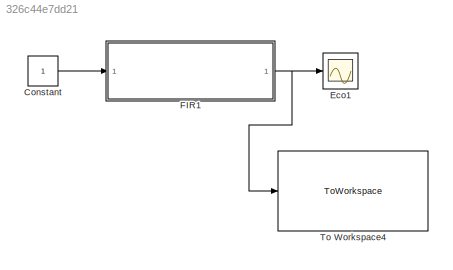
MODEL slx_326c44e7dd21
KIND model
CONFIG AbsTol = auto
CONFIG EnableMultiTasking = off
CONFIG FixedStep = sampleTime
CONFIG MaxStep = auto
CONFIG MinStep = auto
CONFIG RelTol = 1e-3
CONFIG SampleTimeConstraint = Unconstrained
CONFIG Solver = FixedStepAuto
CONFIG SolverName = FixedStepAuto
CONFIG StartTime = 0.0
CONFIG StopTime = 15.0
BLOCK [Constant] Constant
  SampleTime = 1
BLOCK [Scope] Eco1
  Floating = off
  NumInputPorts = 1
  Ports = [1]
  ScopeSpecificationString = Simulink.scopes.TimeScopeBlockCfg('CurrentConfiguration', extmgr.ConfigurationSet(extmgr.Configuration('Core','General UI',true),extmgr.Configuration('Core','Source UI',true),extmgr.Configuration('Sources','WiredSimulink',true),extmgr.Configuration('Visuals','Time Domain',true,'SerializedDisplays',{struct('MinYLimReal','-0.1875','MaxYLimReal','1.6875','YLabelReal','','MinYLimMag','0.00000','MaxYLi...<+1492ch>
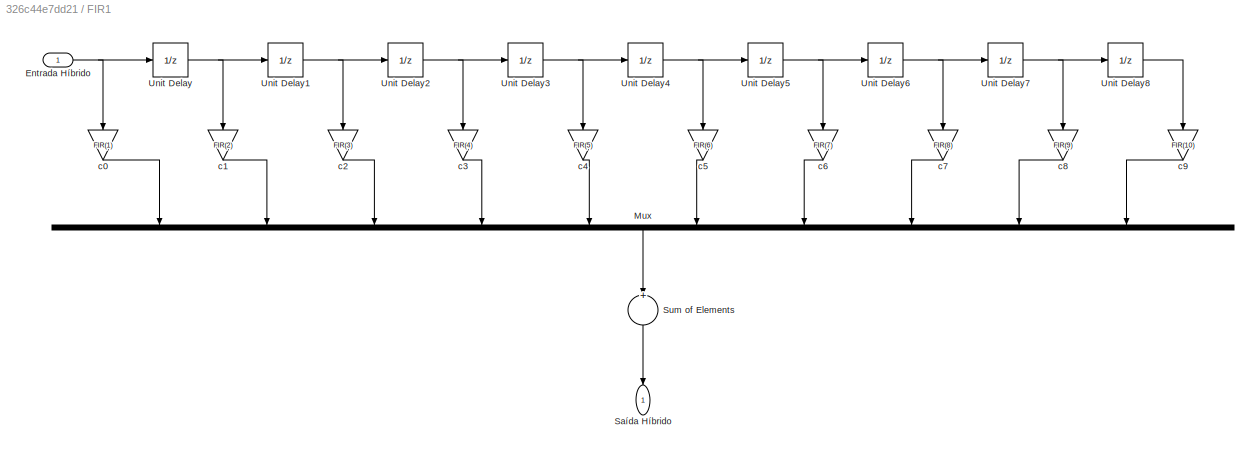
BLOCK [SubSystem] FIR1
  Ports = [1, 1]
  RequestExecContextInheritance = off
BLOCK [Inport] FIR1/Entrada Híbrido
  IconDisplay = Port number
BLOCK [Mux] FIR1/Mux
  DisplayOption = bar
  Inputs = 10
  Ports = [10, 1]
BLOCK [Outport] FIR1/Saída Híbrido
  IconDisplay = Port number
BLOCK [Sum] FIR1/Sum of Elements
  InputSameDT = off
  Inputs = +
  OutDataTypeStr = Inherit: Inherit via internal rule
  Ports = [1, 1]
  SaturateOnIntegerOverflow = off
BLOCK [UnitDelay] FIR1/Unit Delay
  HasFrameUpgradeWarning = on
  SampleTime = -1
BLOCK [UnitDelay] FIR1/Unit Delay1
  HasFrameUpgradeWarning = on
  SampleTime = -1
BLOCK [UnitDelay] FIR1/Unit Delay2
  HasFrameUpgradeWarning = on
  SampleTime = -1
BLOCK [UnitDelay] FIR1/Unit Delay3
  HasFrameUpgradeWarning = on
  SampleTime = -1
BLOCK [UnitDelay] FIR1/Unit Delay4
  HasFrameUpgradeWarning = on
  SampleTime = -1
BLOCK [UnitDelay] FIR1/Unit Delay5
  HasFrameUpgradeWarning = on
  SampleTime = -1
BLOCK [UnitDelay] FIR1/Unit Delay6
  HasFrameUpgradeWarning = on
  SampleTime = -1
BLOCK [UnitDelay] FIR1/Unit Delay7
  HasFrameUpgradeWarning = on
  SampleTime = -1
BLOCK [UnitDelay] FIR1/Unit Delay8
  HasFrameUpgradeWarning = on
  SampleTime = -1
BLOCK [Gain] FIR1/c0
  Gain = FIR(1)
  OutDataTypeStr = Inherit: Inherit via internal rule
  ParamDataTypeStr = Inherit: Inherit via internal rule
  SaturateOnIntegerOverflow = off
BLOCK [Gain] FIR1/c1
  Gain = FIR(2)
  OutDataTypeStr = Inherit: Inherit via internal rule
  ParamDataTypeStr = Inherit: Inherit via internal rule
  SaturateOnIntegerOverflow = off
BLOCK [Gain] FIR1/c2
  Gain = FIR(3)
  OutDataTypeStr = Inherit: Inherit via internal rule
  ParamDataTypeStr = Inherit: Inherit via internal rule
  SaturateOnIntegerOverflow = off
BLOCK [Gain] FIR1/c3
  Gain = FIR(4)
  OutDataTypeStr = Inherit: Inherit via internal rule
  ParamDataTypeStr = Inherit: Inherit via internal rule
  SaturateOnIntegerOverflow = off
BLOCK [Gain] FIR1/c4
  Gain = FIR(5)
  OutDataTypeStr = Inherit: Inherit via internal rule
  ParamDataTypeStr = Inherit: Inherit via internal rule
  SaturateOnIntegerOverflow = off
BLOCK [Gain] FIR1/c5
  Gain = FIR(6)
  OutDataTypeStr = Inherit: Inherit via internal rule
  ParamDataTypeStr = Inherit: Inherit via internal rule
  SaturateOnIntegerOverflow = off
BLOCK [Gain] FIR1/c6
  Gain = FIR(7)
  OutDataTypeStr = Inherit: Inherit via internal rule
  ParamDataTypeStr = Inherit: Inherit via internal rule
  SaturateOnIntegerOverflow = off
BLOCK [Gain] FIR1/c7
  Gain = FIR(8)
  OutDataTypeStr = Inherit: Inherit via internal rule
  ParamDataTypeStr = Inherit: Inherit via internal rule
  SaturateOnIntegerOverflow = off
BLOCK [Gain] FIR1/c8
  Gain = FIR(9)
  OutDataTypeStr = Inherit: Inherit via internal rule
  ParamDataTypeStr = Inherit: Inherit via internal rule
  SaturateOnIntegerOverflow = off
BLOCK [Gain] FIR1/c9
  Gain = FIR(10)
  OutDataTypeStr = Inherit: Inherit via internal rule
  ParamDataTypeStr = Inherit: Inherit via internal rule
  SaturateOnIntegerOverflow = off
BLOCK [ToWorkspace] To Workspace4
  FixptAsFi = on
  MaxDataPoints = inf
  Ports = [1]
  SampleTime = -1
  SaveFormat = Structure With Time
  VariableName = testehibrido
LINE Constant:1 -> FIR1:1
NET FIR1/Entrada Híbrido:1 -> FIR1/Unit Delay:1, FIR1/c0:1
LINE FIR1/Mux:1 -> FIR1/Sum of Elements:1
LINE FIR1/Sum of Elements:1 -> FIR1/Saída Híbrido:1
NET FIR1/Unit Delay1:1 -> FIR1/Unit Delay2:1, FIR1/c2:1
NET FIR1/Unit Delay2:1 -> FIR1/Unit Delay3:1, FIR1/c3:1
NET FIR1/Unit Delay3:1 -> FIR1/Unit Delay4:1, FIR1/c4:1
NET FIR1/Unit Delay4:1 -> FIR1/Unit Delay5:1, FIR1/c5:1
NET FIR1/Unit Delay5:1 -> FIR1/Unit Delay6:1, FIR1/c6:1
NET FIR1/Unit Delay6:1 -> FIR1/Unit Delay7:1, FIR1/c7:1
NET FIR1/Unit Delay7:1 -> FIR1/Unit Delay8:1, FIR1/c8:1
LINE FIR1/Unit Delay8:1 -> FIR1/c9:1
NET FIR1/Unit Delay:1 -> FIR1/Unit Delay1:1, FIR1/c1:1
LINE FIR1/c0:1 -> FIR1/Mux:1
LINE FIR1/c1:1 -> FIR1/Mux:2
LINE FIR1/c2:1 -> FIR1/Mux:3
LINE FIR1/c3:1 -> FIR1/Mux:4
LINE FIR1/c4:1 -> FIR1/Mux:5
LINE FIR1/c5:1 -> FIR1/Mux:6
LINE FIR1/c6:1 -> FIR1/Mux:7
LINE FIR1/c7:1 -> FIR1/Mux:8
LINE FIR1/c8:1 -> FIR1/Mux:9
LINE FIR1/c9:1 -> FIR1/Mux:10
NET FIR1:1 -> Eco1:1, To Workspace4:1
note: NET lines group one-source signal fan-out (src -> all destinations, sorted); 1:1 wires keep LINE
